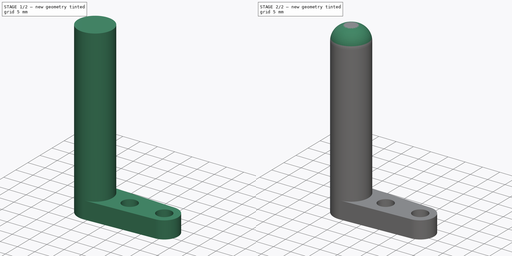
[diagram: build sequence overview — one tinted view per stage of 2, left to right]
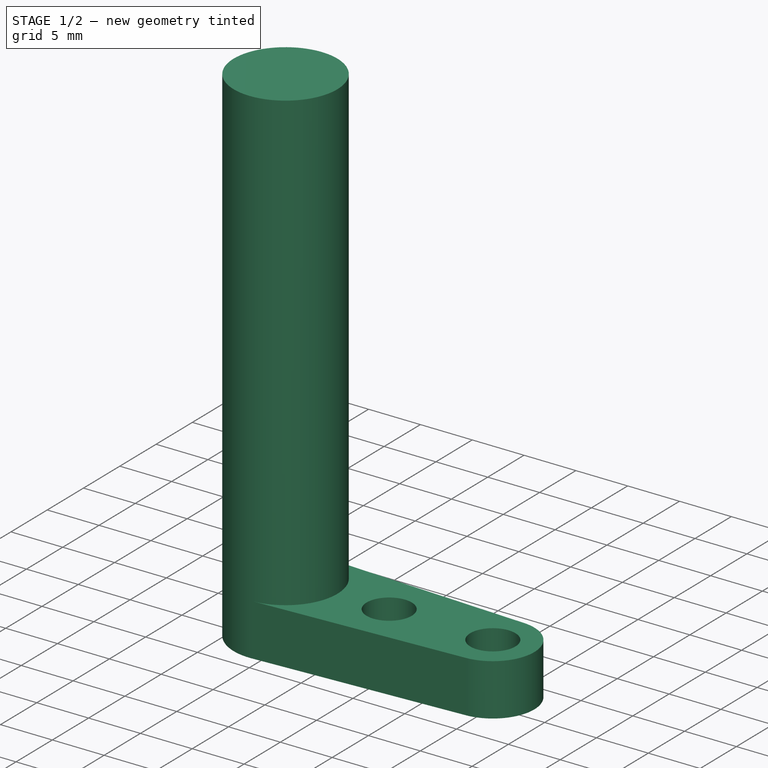
[diagram: stage 1 of 2 — iso view after this stage's code; geometry added in this stage tinted green]
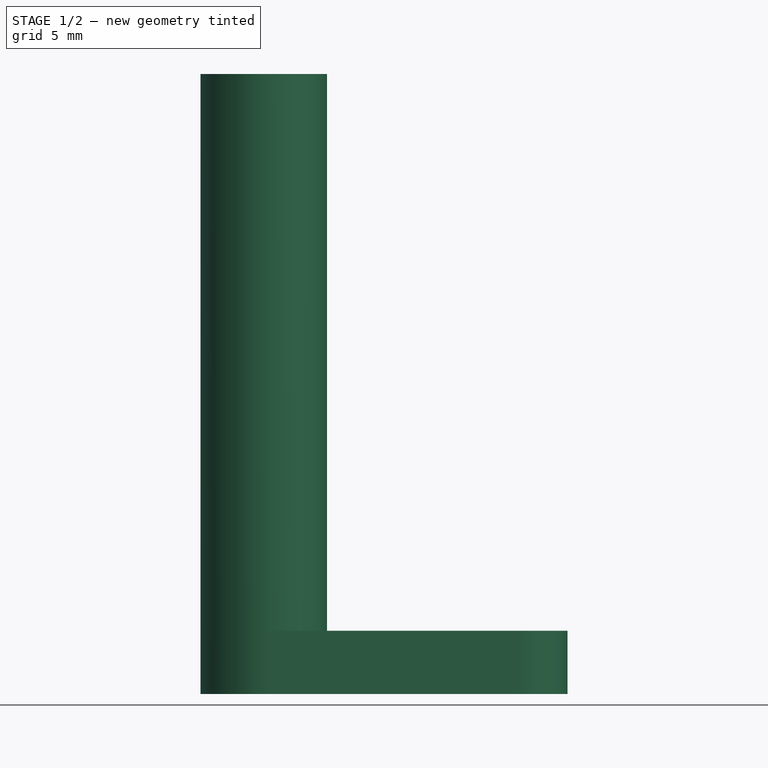
[diagram: stage 1 of 2 — front view after this stage's code; geometry added in this stage tinted green]
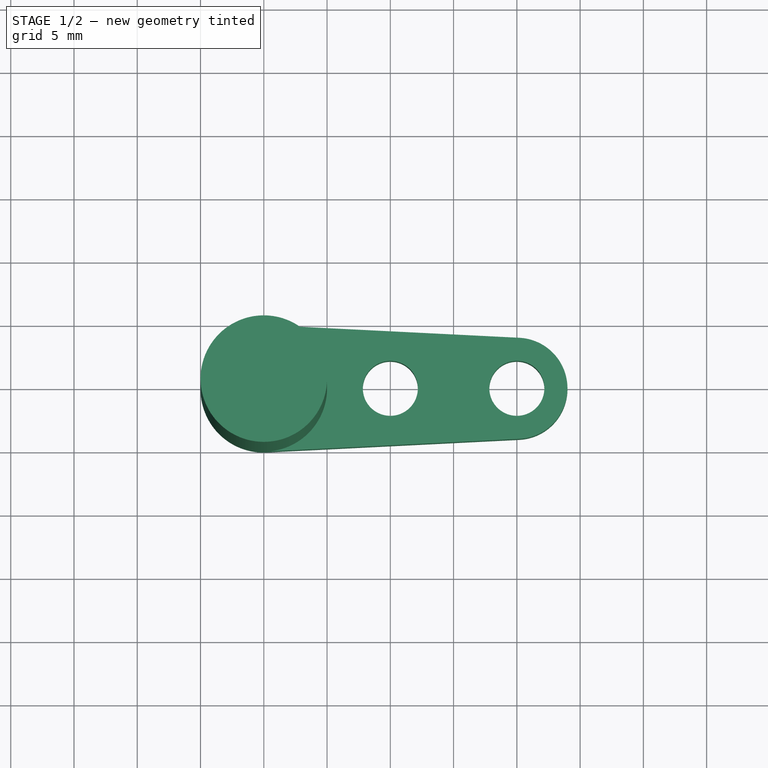
[diagram: stage 1 of 2 — top view after this stage's code; geometry added in this stage tinted green]
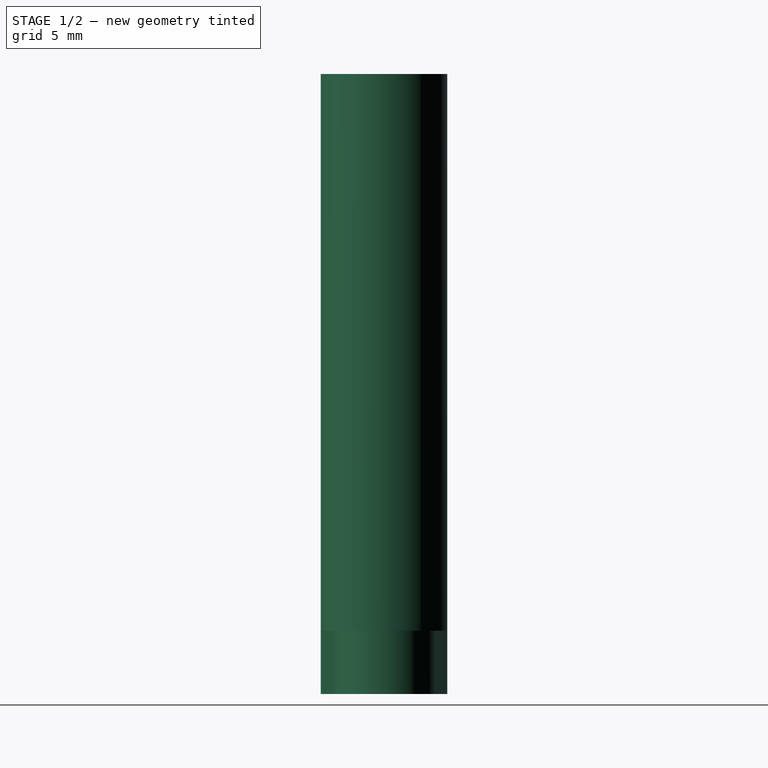
[diagram: stage 1 of 2 — right view after this stage's code; geometry added in this stage tinted green]
FCSTD DOCUMENT  (FreeCAD 1.1R40077 (Git))
Label: Slider
License: All rights reserved
LicenseURL: https://en.wikipedia.org/wiki/All_rights_reserved
objects: Sketcher::SketchObject×3, PartDesign::Pad×2, App::Point×1, Part::DatumPlane×1, PartDesign::Groove×1, PartDesign::Body×1
note: 16 computed .brp shape members not serialized (recipe doc carries the construction recipe); baked Part::Feature solids carry a one-line shape summary decoded from their .brp
EXTERNAL_REF file=../Variables.FCStd obj=Spreadsheet

FEATURE [App::Point] Origin001
  Role = Origin
FEATURE [Sketcher::SketchObject] Sketch
  ArcFitTolerance = 1e-06
  AttachmentSupport = -> [XY_Plane]
  ExternalTypes = [0]
  FullyConstrained = true
  MakeInternals = false
  MapMode = 5
  expr: Constraints[0] = Variables#Spreadsheet.SliderPoleDiam / 2
  expr: Constraints[18] = Variables#Spreadsheet.SupportSliderMountLineDist
  expr: Constraints[2] = Variables#Spreadsheet.M4ThroughBoreDiam
  sketch-geometry (9):
    g0: ArcOfCircle CenterX=4e-16 CenterY=0 CenterZ=0 NormalX=0 NormalY=0 NormalZ=1 AngleXU=0 Radius=5 StartAngle=1.52078 EndAngle=4.76241
    g1: LineSegment [constr] StartX=4e-16 StartY=0 StartZ=0 EndX=20 EndY=0 EndZ=0
    g2: Circle CenterX=10 CenterY=0 CenterZ=0 NormalX=0 NormalY=0 NormalZ=1 AngleXU=0 Radius=2.175
    g3: Circle CenterX=20 CenterY=0 CenterZ=0 NormalX=0 NormalY=0 NormalZ=1 AngleXU=0 Radius=2.175
    g4: GeomPoint X=20.2 Y=-3.995 Z=0
    g5: GeomPoint X=20.2 Y=3.995 Z=0
    g6: ArcOfCircle CenterX=20 CenterY=0 CenterZ=0 NormalX=0 NormalY=0 NormalZ=1 AngleXU=0 Radius=4 StartAngle=4.76242 EndAngle=7.80395
    g7: LineSegment StartX=20.2 StartY=-3.995 StartZ=0 EndX=0.25 EndY=-4.99375 EndZ=0
    g8: LineSegment StartX=0.25 StartY=4.99375 StartZ=0 EndX=20.2 EndY=3.995 EndZ=0
  constraints (19):
    c: Radius(g0) = 5
    c: Symmetric(g1,g1,g2)
    c: Diameter(g2) = 4.35
    c: Coincident(g3,g1)
    c: Equal(g2,g3)
    c: Coincident(g6,g5)
    c: Coincident(g6,g4)
    c: Coincident(g6,g1)
    c: Radius(g6) = 4
    c: Coincident(g7,g4)
    c: Coincident(g8,g5)
    c: Tangent(g7,g0) = 1.5708
    c: Tangent(g8,g0) = 1.5708
    c: Coincident(g1,g0)
    c: Tangent(g6,g7)
    c: Tangent(g6,g8)
    c: Coincident(g0,g-1)
    c: Horizontal(g1)
    c: DistanceX(g1,g1) = 20
FEATURE [PartDesign::Pad] Pad
  Direction = (0,0,1)
  Length = 5
  Length2 = 10
  Profile = -> Sketch
  ReferenceAxis = -> Sketch [N_Axis]
  Refine = true
  Suppressed = false
  Type = 0
FEATURE [Sketcher::SketchObject] Sketch001
  ArcFitTolerance = 1e-06
  AttachmentSupport = -> [Pad]
  ExternalGeometry = -> [Pad]
  ExternalTypes = [0]
  FullyConstrained = true
  MakeInternals = false
  MapMode = 5
  Placement = pos=(0,0,5) rot=(0,0,1;0rad)
  sketch-geometry (1):
    g0: ArcOfCircle CenterX=-1.41951e-11 CenterY=-4e-16 CenterZ=0 NormalX=0 NormalY=0 NormalZ=1 AngleXU=0 Radius=5 StartAngle=4.76241 EndAngle=7.80396
  constraints (3):
    c: Coincident(g-3,g0)
    c: Coincident(g0,g-3)
    c: Equal(g0,g-3)
FEATURE [PartDesign::Pad] Pad001
  BaseFeature = -> Pad
  Direction = (0,0,1)
  Length = 44
  Length2 = 10
  Profile = -> Sketch001
  ReferenceAxis = -> Sketch001 [N_Axis]
  Refine = true
  Suppressed = false
  Type = 0
  expr: Length = 18.25 mm + Variables#Spreadsheet.WheelDiam / 2 - Pad.Length + 3.25 mm + Variables#Spreadsheet.SliderTolerance
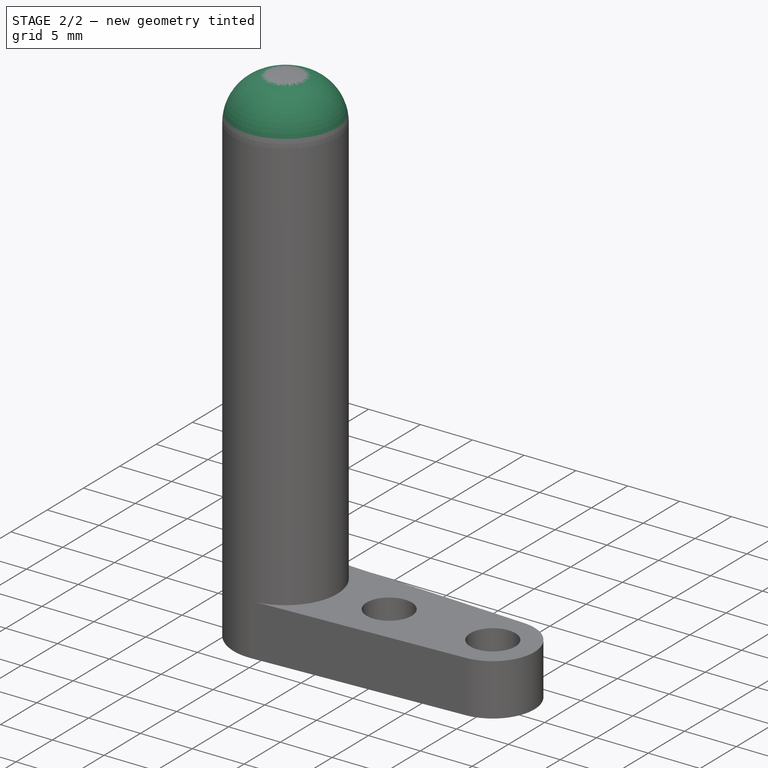
[diagram: stage 2 of 2 — iso view after this stage's code; geometry added in this stage tinted green]
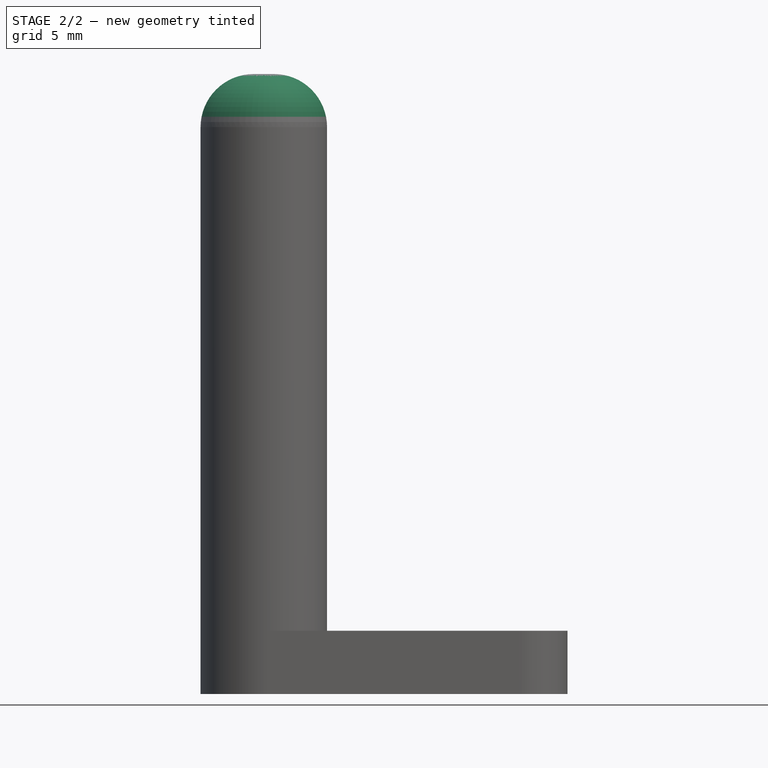
[diagram: stage 2 of 2 — front view after this stage's code; geometry added in this stage tinted green]
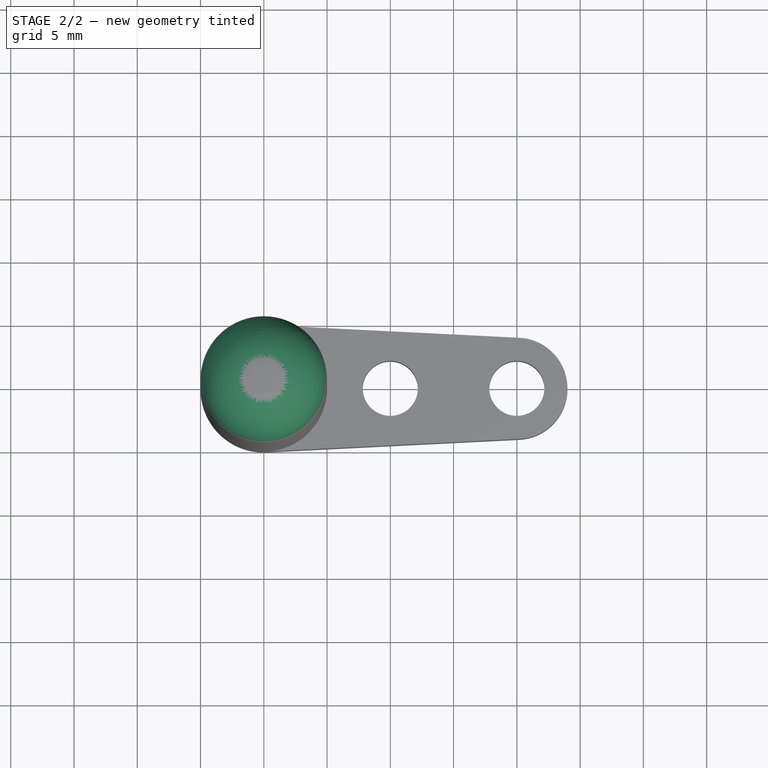
[diagram: stage 2 of 2 — top view after this stage's code; geometry added in this stage tinted green]
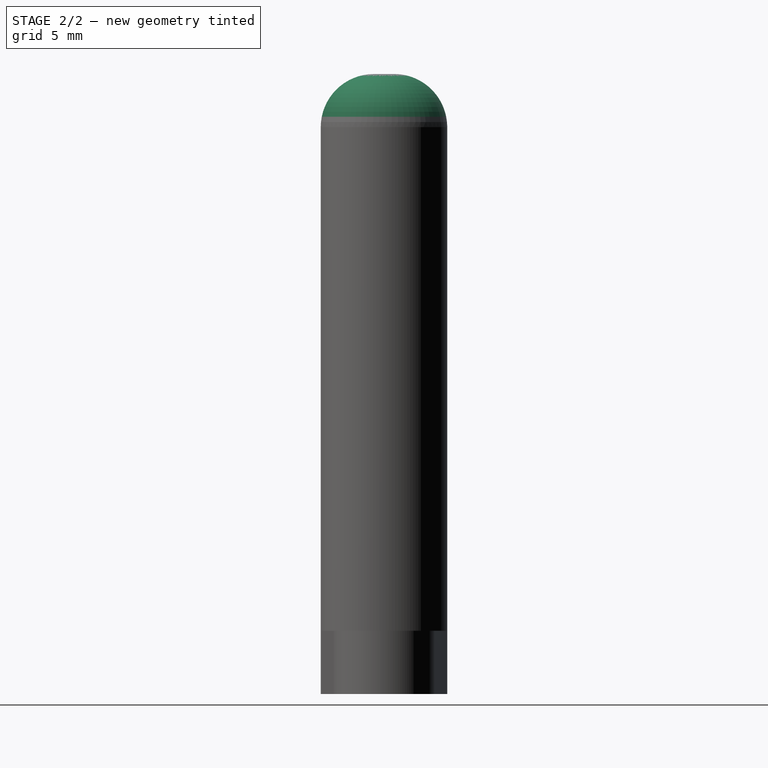
[diagram: stage 2 of 2 — right view after this stage's code; geometry added in this stage tinted green]
FEATURE [Part::DatumPlane] DatumPlane
  AttachmentOffset = pos=(0,0,0) rot=(0,1,0;1.5708rad)
  AttachmentSupport = -> [Pad001]
  MapMode = 11
  Placement = pos=(3e-16,-9e-16,49) rot=(-0.706996,0.017686,0.706996;3.10622rad)
FEATURE [Sketcher::SketchObject] Sketch002
  ArcFitTolerance = 1e-06
  AttachmentSupport = -> [DatumPlane]
  ExternalGeometry = -> [Pad001]
  ExternalTypes = [0]
  FullyConstrained = true
  MakeInternals = false
  MapMode = 5
  Placement = pos=(3e-16,-9e-16,49) rot=(0.706996,-0.017686,-0.706996;3.17696rad)
  sketch-geometry (3):
    g0: ArcOfCircle CenterX=4.2 CenterY=-0.8 CenterZ=0 NormalX=0 NormalY=0 NormalZ=1 AngleXU=0 Radius=4.2 StartAngle=3.14159 EndAngle=4.71239
    g1: LineSegment StartX=4.2 StartY=-5 StartZ=0 EndX=-4.44e-14 EndY=-5 EndZ=0
    g2: LineSegment StartX=-4.44e-14 StartY=-5 StartZ=0 EndX=-2.7e-15 EndY=-0.8 EndZ=0
  constraints (7):
    c: Horizontal(g1)
    c: Coincident(g1,g2)
    c: Tangent(g1,g0) = 1.5708
    c: Tangent(g0,g2) = 1.5708
    c: Coincident(g-12,g1)
    c: PointOnObject(g0,g-12)
    c: DistanceY(g0,g-1) = 0.8
FEATURE [PartDesign::Groove] Groove
  Angle = 360
  Angle2 = 60
  Axis = (0,0,-1)
  Base = (3e-16,-9e-16,49)
  BaseFeature = -> Pad001
  Profile = -> Sketch002
  ReferenceAxis = -> Sketch002 [H_Axis]
  Refine = true
  Suppressed = false
  Type = 0
FEATURE [PartDesign::Body] Body  label="Support Slider"
  AllowCompound = true
  Group = -> [Sketch,Pad,Sketch001,Pad001,DatumPlane,Sketch002,Groove]
  Origin = -> Origin
  Tip = -> Groove
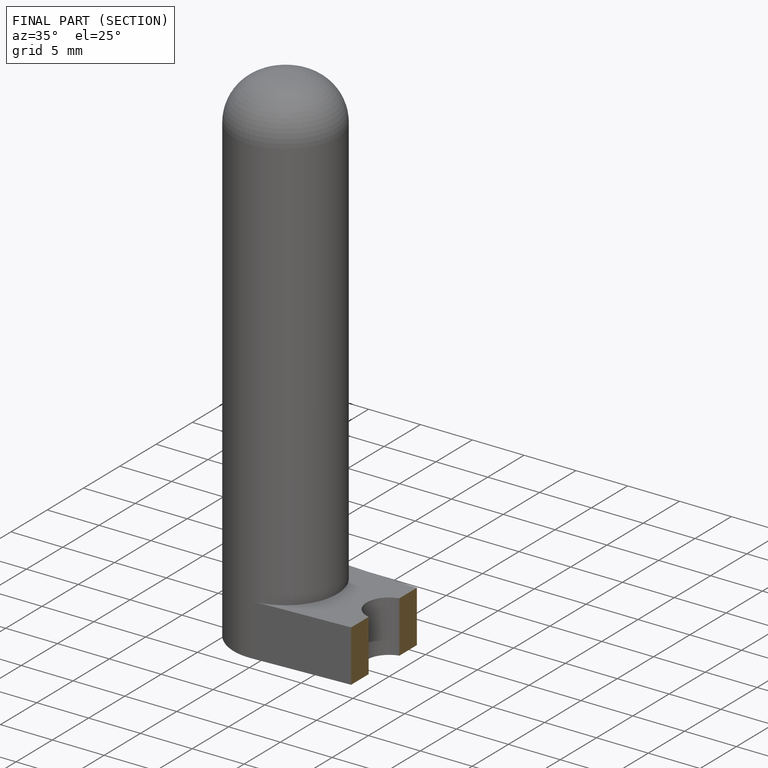
[diagram: finished part — half-section view (interior)]
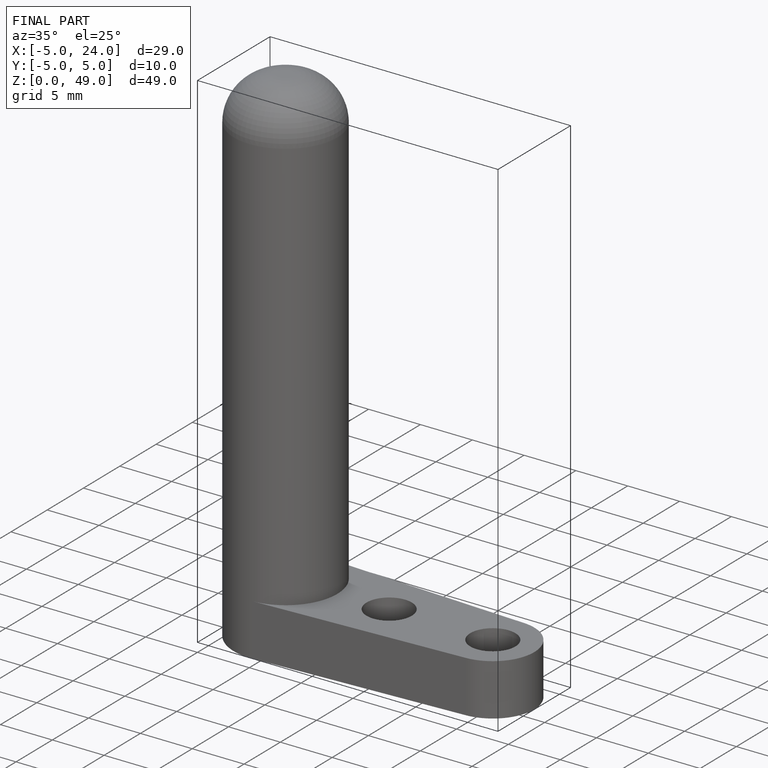
[diagram: finished part — iso view with bounding-box wireframe]
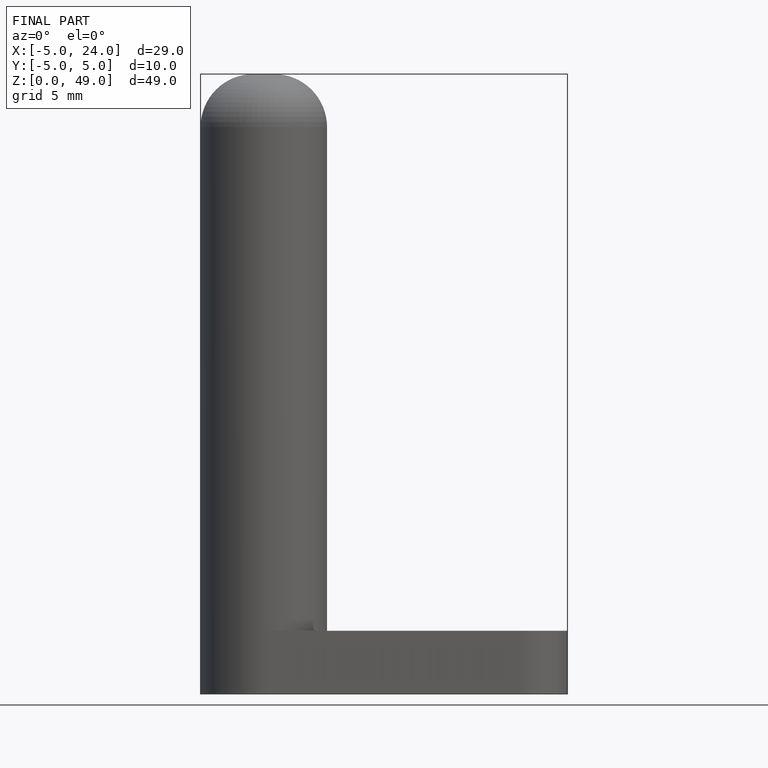
[diagram: finished part — front view with bounding-box wireframe]
